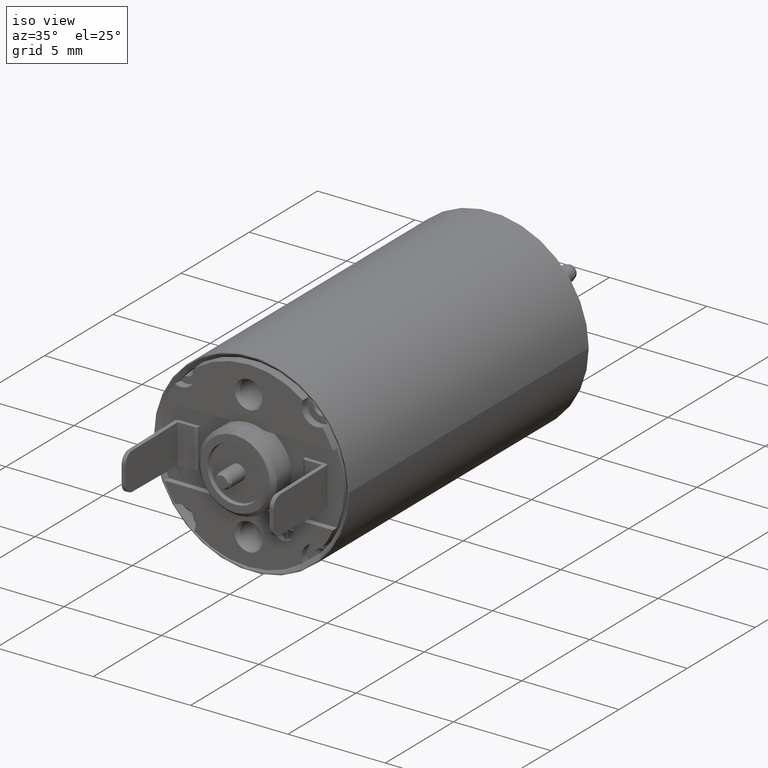
[diagram: clean part render]
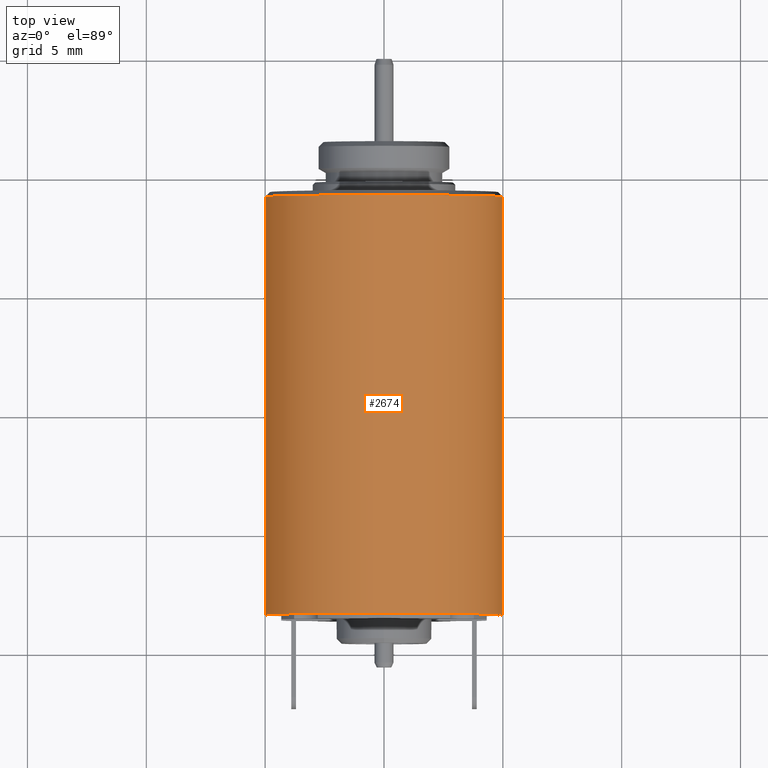
[diagram: tour spotlight — one face highlighted and labeled with its STEP entity id]
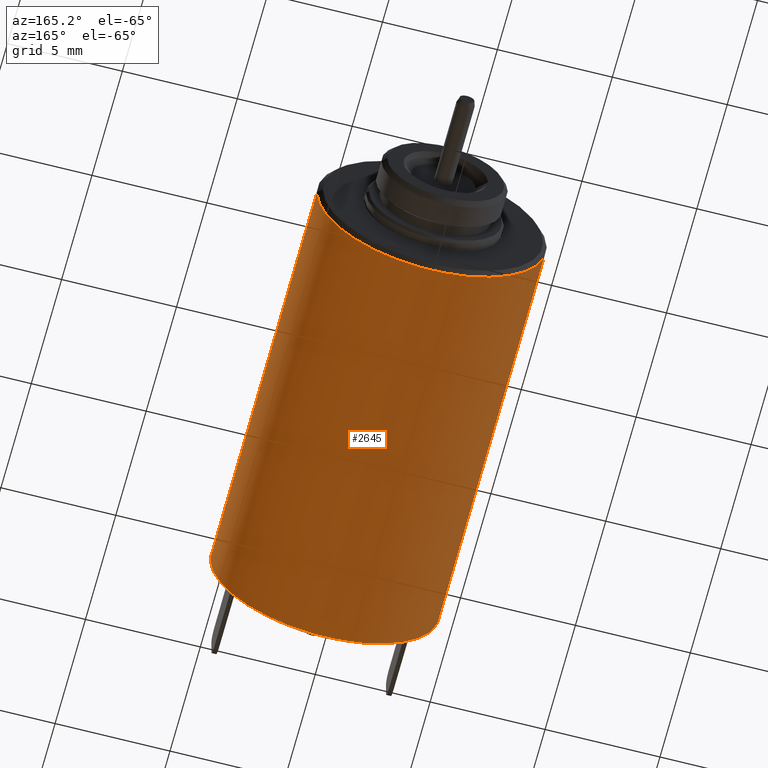
[diagram: tour spotlight — one face highlighted and labeled with its STEP entity id]
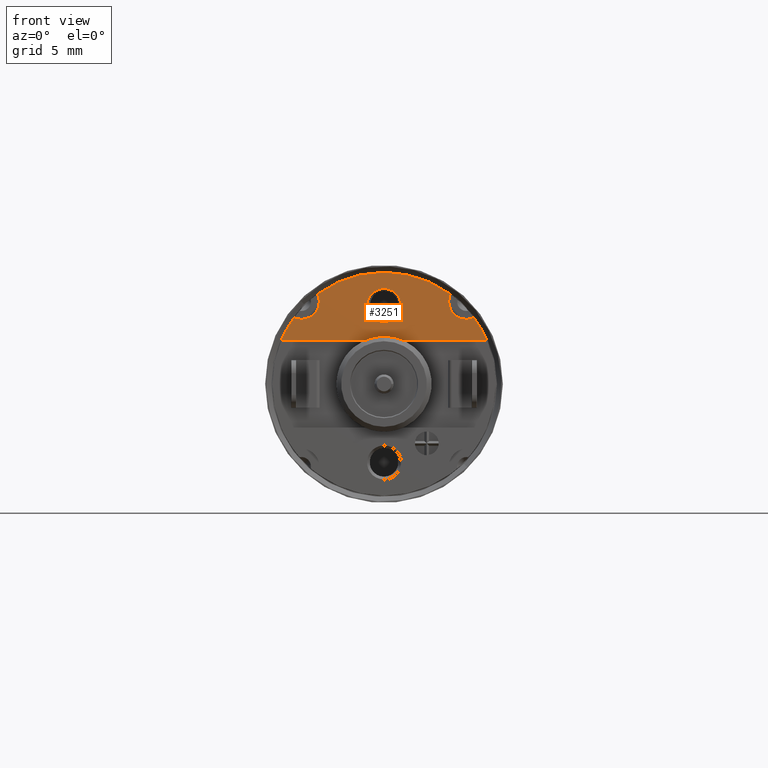
[diagram: tour spotlight — one face highlighted and labeled with its STEP entity id]
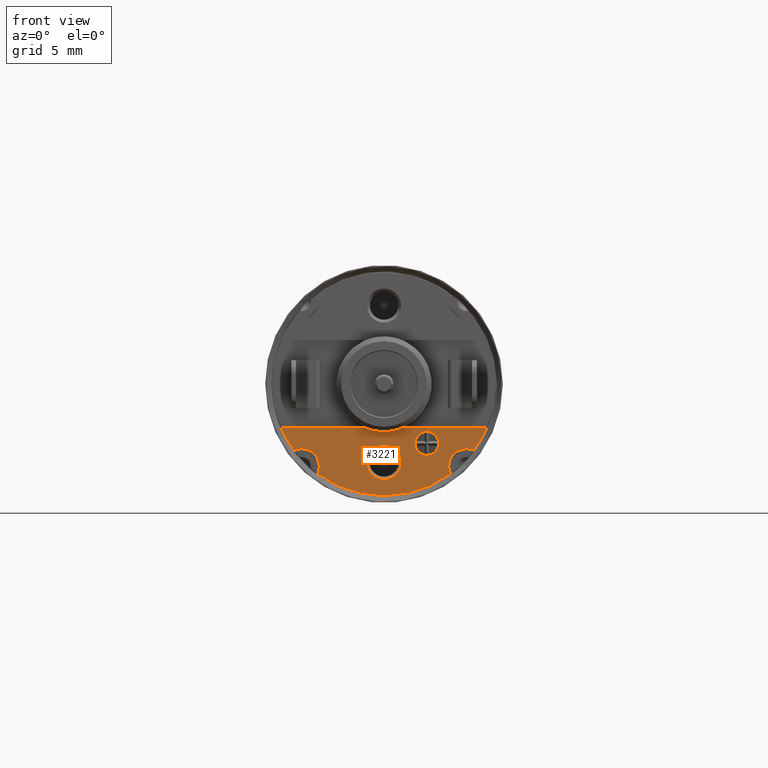
[diagram: tour spotlight — one face highlighted and labeled with its STEP entity id]
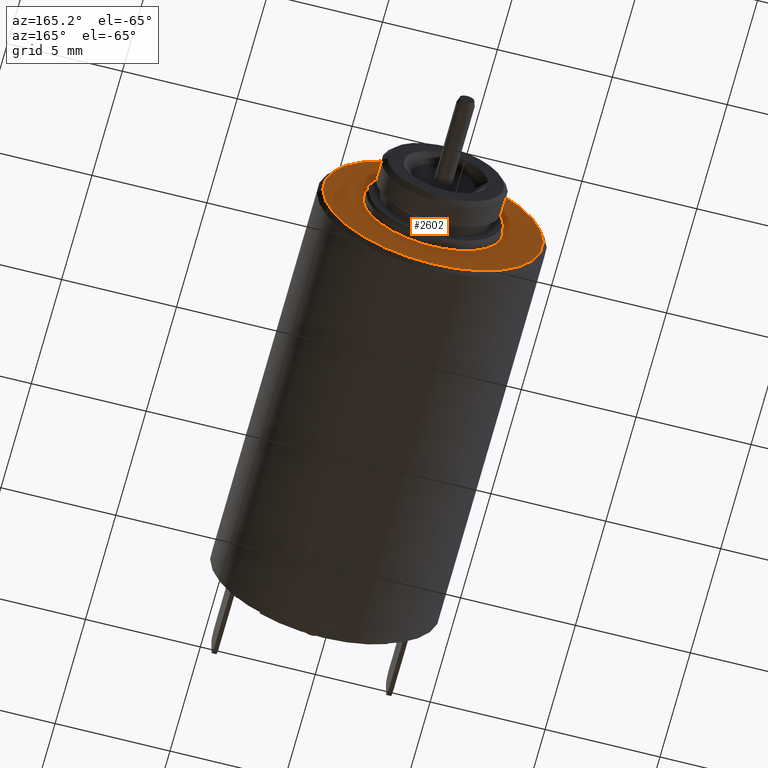
[diagram: tour spotlight — one face highlighted and labeled with its STEP entity id]
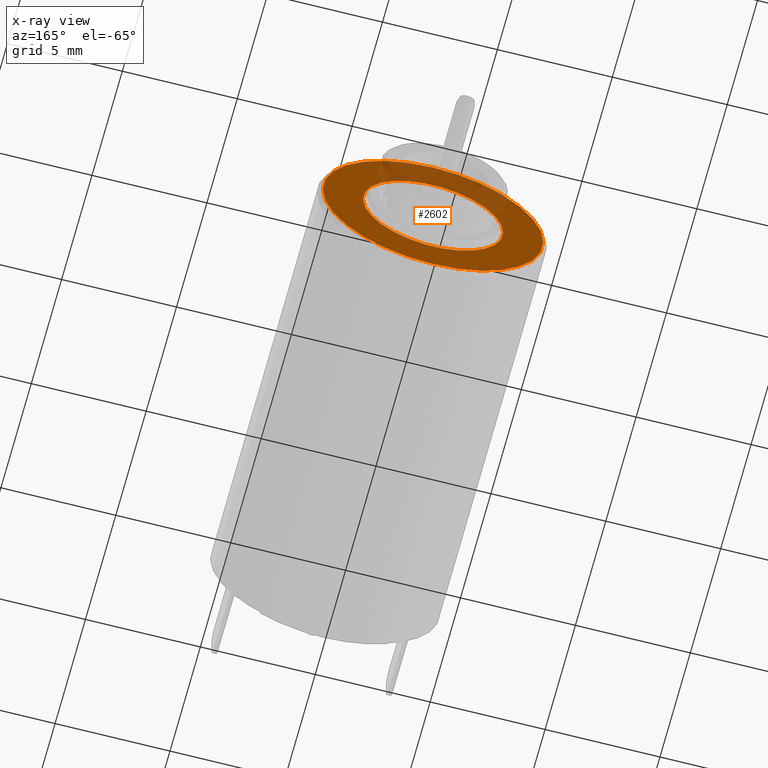
[diagram: x-ray of the same camera — body ghosted, this tour face saturated]
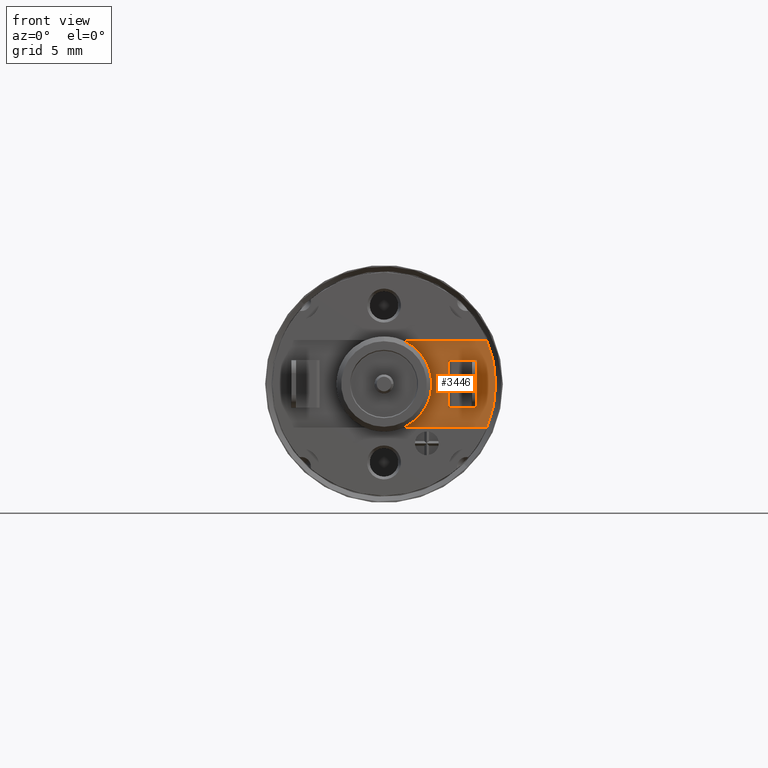
[diagram: tour spotlight — one face highlighted and labeled with its STEP entity id]
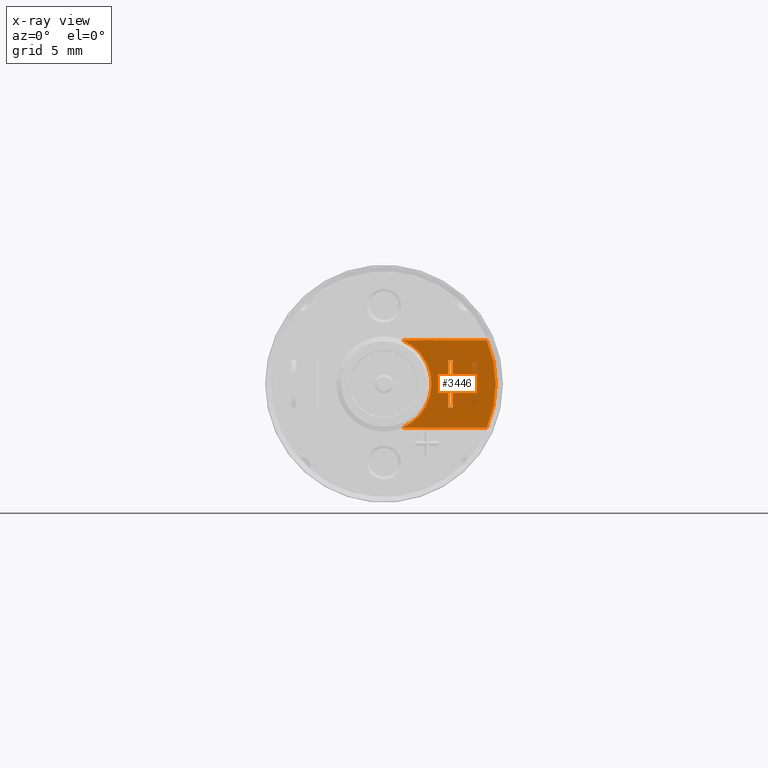
[diagram: x-ray of the same camera — body ghosted, this tour face saturated]
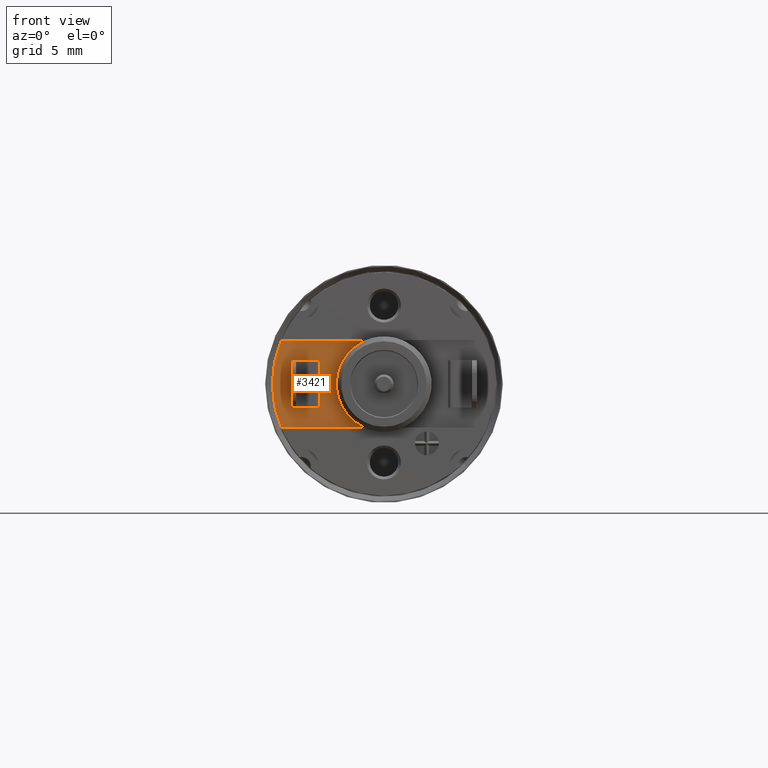
[diagram: tour spotlight — one face highlighted and labeled with its STEP entity id]
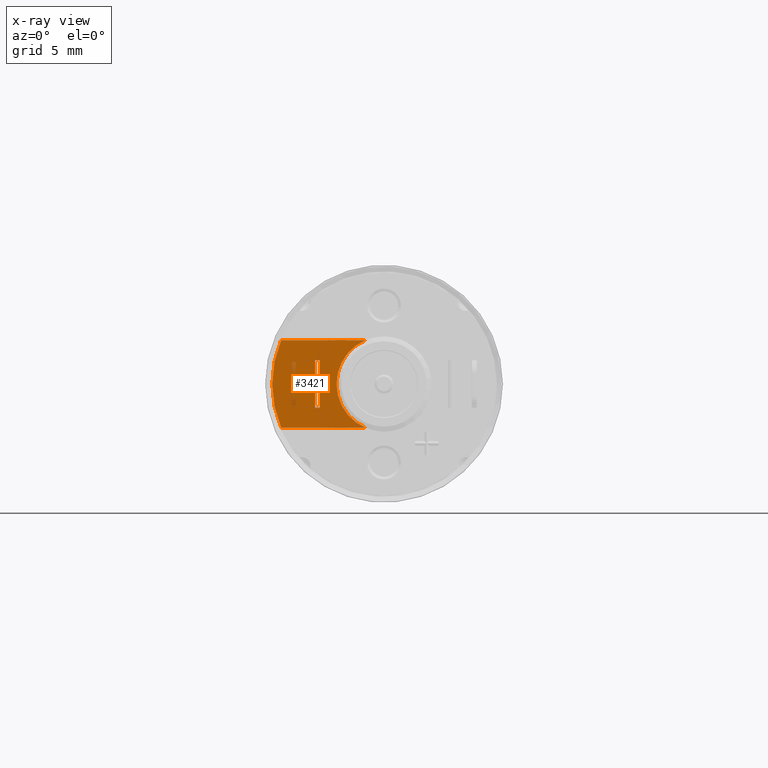
[diagram: x-ray of the same camera — body ghosted, this tour face saturated]
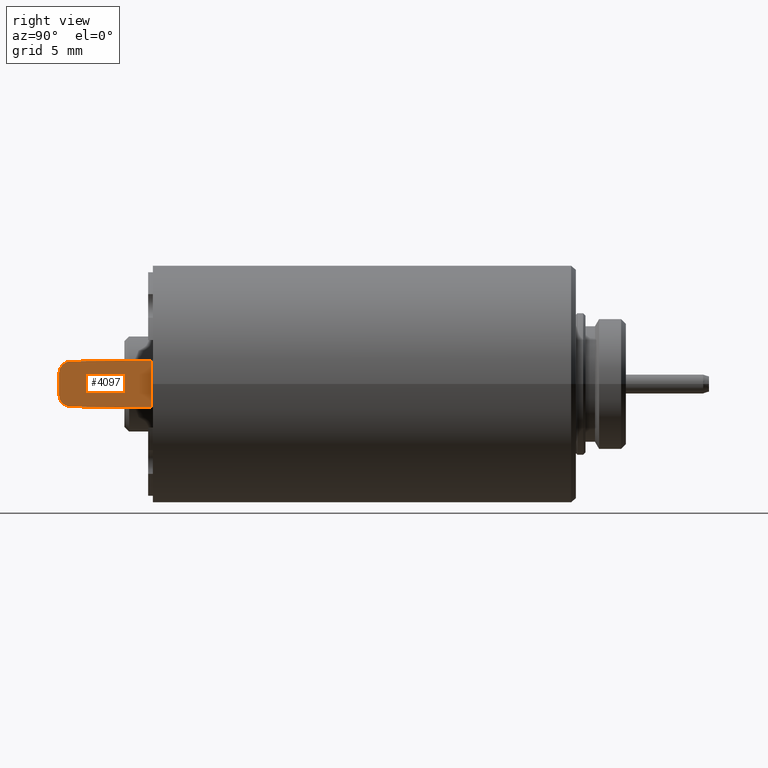
[diagram: tour spotlight — one face highlighted and labeled with its STEP entity id]
A machine part: a face-by-face anatomy tour. The part has 157 B-rep faces; the first image is the clean iso view, then the 8 largest visible faces are spotlighted one at a time (largest first), each with its STEP entity span.

Face 1 — top view, entity #2674. In plain terms, the highlighted cylindrical surface (partial cylindrical patch) has radius 5 mm, axis along (0, 1, 0).
Definition (entity closure, byte-faithful):
#246=DIRECTION('',(0.E0,-1.E0,0.E0));
#247=VECTOR('',#246,1.76E1);
#248=CARTESIAN_POINT('',(5.E0,-5.8E0,0.E0));
#249=LINE('',#248,#247);
#255=DIRECTION('',(0.E0,-1.E0,0.E0));
#256=VECTOR('',#255,1.76E1);
#257=CARTESIAN_POINT('',(-5.E0,-5.8E0,0.E0));
#258=LINE('',#257,#256);
#269=CARTESIAN_POINT('',(0.E0,-2.34E1,0.E0));
#270=DIRECTION('',(0.E0,-1.E0,0.E0));
#271=DIRECTION('',(1.E0,0.E0,0.E0));
#272=AXIS2_PLACEMENT_3D('',#269,#270,#271);
#274=CARTESIAN_POINT('',(0.E0,-5.8E0,0.E0));
#275=DIRECTION('',(0.E0,1.E0,0.E0));
#276=DIRECTION('',(-1.E0,0.E0,0.E0));
#277=AXIS2_PLACEMENT_3D('',#274,#275,#276);
#1796=CARTESIAN_POINT('',(-5.E0,-5.8E0,0.E0));
#1798=VERTEX_POINT('',#1796);
#1799=CARTESIAN_POINT('',(-5.E0,-2.34E1,0.E0));
#1800=VERTEX_POINT('',#1799);
#1820=CARTESIAN_POINT('',(5.E0,-5.8E0,0.E0));
#1822=VERTEX_POINT('',#1820);
#1823=CARTESIAN_POINT('',(5.E0,-2.34E1,0.E0));
#1824=VERTEX_POINT('',#1823);
#2663=CARTESIAN_POINT('',(0.E0,-2.688E1,0.E0));
#2664=DIRECTION('',(0.E0,1.E0,0.E0));
#2665=DIRECTION('',(1.E0,0.E0,0.E0));
#2666=AXIS2_PLACEMENT_3D('',#2663,#2664,#2665);
#2667=CYLINDRICAL_SURFACE('',#2666,5.E0);
#2668=ORIENTED_EDGE('',*,*,#2651,.T.);
#2669=ORIENTED_EDGE('',*,*,#2641,.F.);
#2670=ORIENTED_EDGE('',*,*,#2613,.T.);
#2671=ORIENTED_EDGE('',*,*,#2638,.T.);
#2672=EDGE_LOOP('',(#2668,#2669,#2670,#2671));
#2673=FACE_OUTER_BOUND('',#2672,.F.);
#2674=ADVANCED_FACE('',(#2673),#2667,.T.);
#273=CIRCLE('',#272,5.E0);
#278=CIRCLE('',#277,5.E0);
#2613=EDGE_CURVE('',#1798,#1822,#278,.T.);
#2638=EDGE_CURVE('',#1822,#1824,#249,.T.);
#2641=EDGE_CURVE('',#1798,#1800,#258,.T.);
#2651=EDGE_CURVE('',#1824,#1800,#273,.T.);

Face 2 — auxiliary view, entity #2645. In plain terms, the highlighted cylindrical surface (partial cylindrical patch) has radius 5 mm, axis along (0, 1, 0).
Definition (entity closure, byte-faithful):
#241=CARTESIAN_POINT('',(0.E0,-2.34E1,0.E0));
#242=DIRECTION('',(0.E0,-1.E0,0.E0));
#243=DIRECTION('',(-1.E0,0.E0,0.E0));
#244=AXIS2_PLACEMENT_3D('',#241,#242,#243);
#246=DIRECTION('',(0.E0,-1.E0,0.E0));
#247=VECTOR('',#246,1.76E1);
#248=CARTESIAN_POINT('',(5.E0,-5.8E0,0.E0));
#249=LINE('',#248,#247);
#250=CARTESIAN_POINT('',(0.E0,-5.8E0,0.E0));
#251=DIRECTION('',(0.E0,-1.E0,0.E0));
#252=DIRECTION('',(-1.E0,0.E0,0.E0));
#253=AXIS2_PLACEMENT_3D('',#250,#251,#252);
#255=DIRECTION('',(0.E0,-1.E0,0.E0));
#256=VECTOR('',#255,1.76E1);
#257=CARTESIAN_POINT('',(-5.E0,-5.8E0,0.E0));
#258=LINE('',#257,#256);
#1796=CARTESIAN_POINT('',(-5.E0,-5.8E0,0.E0));
#1798=VERTEX_POINT('',#1796);
#1799=CARTESIAN_POINT('',(-5.E0,-2.34E1,0.E0));
#1800=VERTEX_POINT('',#1799);
#1820=CARTESIAN_POINT('',(5.E0,-5.8E0,0.E0));
#1822=VERTEX_POINT('',#1820);
#1823=CARTESIAN_POINT('',(5.E0,-2.34E1,0.E0));
#1824=VERTEX_POINT('',#1823);
#2631=CARTESIAN_POINT('',(0.E0,-2.688E1,0.E0));
#2632=DIRECTION('',(0.E0,1.E0,0.E0));
#2633=DIRECTION('',(1.E0,0.E0,0.E0));
#2634=AXIS2_PLACEMENT_3D('',#2631,#2632,#2633);
#2635=CYLINDRICAL_SURFACE('',#2634,5.E0);
#2637=ORIENTED_EDGE('',*,*,#2636,.T.);
#2639=ORIENTED_EDGE('',*,*,#2638,.F.);
#2640=ORIENTED_EDGE('',*,*,#2624,.F.);
#2642=ORIENTED_EDGE('',*,*,#2641,.T.);
#2643=EDGE_LOOP('',(#2637,#2639,#2640,#2642));
#2644=FACE_OUTER_BOUND('',#2643,.F.);
#2645=ADVANCED_FACE('',(#2644),#2635,.T.);
#245=CIRCLE('',#244,5.E0);
#254=CIRCLE('',#253,5.E0);
#2624=EDGE_CURVE('',#1798,#1822,#254,.T.);
#2636=EDGE_CURVE('',#1800,#1824,#245,.T.);
#2638=EDGE_CURVE('',#1822,#1824,#249,.T.);
#2641=EDGE_CURVE('',#1798,#1800,#258,.T.);

Face 3 — front view, entity #3251. In plain terms, the highlighted planar face has unit normal (0, 1, 0).
Definition (entity closure, byte-faithful):
#395=CARTESIAN_POINT('',(0.E0,-2.36E1,0.E0));
#396=DIRECTION('',(0.E0,1.E0,0.E0));
#397=DIRECTION('',(-5.934816430566E-1,0.E0,8.048475255319E-1));
#398=AXIS2_PLACEMENT_3D('',#395,#396,#397);
#418=CARTESIAN_POINT('',(0.E0,-2.36E1,0.E0));
#419=DIRECTION('',(0.E0,1.E0,0.E0));
#420=DIRECTION('',(-9.201826338690E-1,0.E0,3.914893617021E-1));
#421=AXIS2_PLACEMENT_3D('',#418,#419,#420);
#631=CARTESIAN_POINT('',(0.E0,-2.36E1,0.E0));
#632=DIRECTION('',(0.E0,-1.E0,0.E0));
#633=DIRECTION('',(9.201826338690E-1,0.E0,3.914893617021E-1));
#634=AXIS2_PLACEMENT_3D('',#631,#632,#633);
#654=CARTESIAN_POINT('',(0.E0,-2.36E1,0.E0));
#655=DIRECTION('',(0.E0,-1.E0,0.E0));
#656=DIRECTION('',(5.934816430566E-1,0.E0,8.048475255319E-1));
#657=AXIS2_PLACEMENT_3D('',#654,#655,#656);
#742=CARTESIAN_POINT('',(0.E0,-2.36E1,3.3E0));
#743=DIRECTION('',(0.E0,1.E0,0.E0));
#744=DIRECTION('',(0.E0,0.E0,1.E0));
#745=AXIS2_PLACEMENT_3D('',#742,#743,#744);
#747=CARTESIAN_POINT('',(0.E0,-2.36E1,3.3E0));
#748=DIRECTION('',(0.E0,1.E0,0.E0));
#749=DIRECTION('',(0.E0,0.E0,-1.E0));
#750=AXIS2_PLACEMENT_3D('',#747,#748,#749);
#770=DIRECTION('',(-1.E0,0.E0,0.E0));
#771=VECTOR('',#770,3.541021661494E0);
#772=CARTESIAN_POINT('',(-7.838367176906E-1,-2.36E1,1.84E0));
#773=LINE('',#772,#771);
#774=DIRECTION('',(-1.E0,0.E0,0.E0));
#775=VECTOR('',#774,3.541021661494E0);
#776=CARTESIAN_POINT('',(4.324858379184E0,-2.36E1,1.84E0));
#777=LINE('',#776,#775);
#778=CARTESIAN_POINT('',(0.E0,-2.36E1,0.E0));
#779=DIRECTION('',(0.E0,-1.E0,0.E0));
#780=DIRECTION('',(3.919183588453E-1,0.E0,9.2E-1));
#781=AXIS2_PLACEMENT_3D('',#778,#779,#780);
#783=CARTESIAN_POINT('',(0.E0,-2.36E1,0.E0));
#784=DIRECTION('',(0.E0,1.E0,0.E0));
#785=DIRECTION('',(-3.919183588453E-1,0.E0,9.2E-1));
#786=AXIS2_PLACEMENT_3D('',#783,#784,#785);
#1462=CARTESIAN_POINT('',(-3.471894295626E0,-2.36E1,3.471894295626E0));
#1463=DIRECTION('',(0.E0,1.E0,0.E0));
#1464=DIRECTION('',(9.100407643468E-1,0.E0,4.145187658322E-1));
#1465=AXIS2_PLACEMENT_3D('',#1462,#1463,#1464);
#1492=CARTESIAN_POINT('',(3.471894295626E0,-2.36E1,3.471894295626E0));
#1493=DIRECTION('',(0.E0,1.E0,0.E0));
#1494=DIRECTION('',(4.145187658322E-1,0.E0,-9.100407643468E-1));
#1495=AXIS2_PLACEMENT_3D('',#1492,#1493,#1494);
#1871=CARTESIAN_POINT('',(0.E0,-2.36E1,2.E0));
#1872=VERTEX_POINT('',#1871);
#1907=CARTESIAN_POINT('',(0.E0,-2.36E1,4.7E0));
#1908=VERTEX_POINT('',#1907);
#1933=CARTESIAN_POINT('',(0.E0,-2.36E1,4.015470053838E0));
#1934=CARTESIAN_POINT('',(0.E0,-2.36E1,2.584529946162E0));
#1935=VERTEX_POINT('',#1933);
#1936=VERTEX_POINT('',#1934);
#1941=CARTESIAN_POINT('',(-2.789363722366E0,-2.36E1,3.78278337E0));
#1943=VERTEX_POINT('',#1941);
#1951=CARTESIAN_POINT('',(-3.78278337E0,-2.36E1,2.789363722366E0));
#1952=VERTEX_POINT('',#1951);
#1953=CARTESIAN_POINT('',(3.78278337E0,-2.36E1,2.789363722366E0));
#1955=VERTEX_POINT('',#1953);
#1963=CARTESIAN_POINT('',(2.789363722366E0,-2.36E1,3.78278337E0));
#1964=VERTEX_POINT('',#1963);
#1997=CARTESIAN_POINT('',(-7.838367176906E-1,-2.36E1,1.84E0));
#1998=CARTESIAN_POINT('',(-4.324858379184E0,-2.36E1,1.84E0));
#1999=VERTEX_POINT('',#1997);
#2000=VERTEX_POINT('',#1998);
#2011=CARTESIAN_POINT('',(7.838367176906E-1,-2.36E1,1.84E0));
#2012=VERTEX_POINT('',#2011);
#2015=CARTESIAN_POINT('',(4.324858379184E0,-2.36E1,1.84E0));
#2016=VERTEX_POINT('',#2015);
#3222=CARTESIAN_POINT('',(0.E0,-2.36E1,0.E0));
#3223=DIRECTION('',(0.E0,1.E0,0.E0));
#3224=DIRECTION('',(0.E0,0.E0,-1.E0));
#3225=AXIS2_PLACEMENT_3D('',#3222,#3223,#3224);
#3226=PLANE('',#3225);
#3228=ORIENTED_EDGE('',*,*,#3227,.T.);
#3229=ORIENTED_EDGE('',*,*,#2912,.T.);
#3231=ORIENTED_EDGE('',*,*,#3230,.F.);
#3232=ORIENTED_EDGE('',*,*,#2900,.T.);
#3233=ORIENTED_EDGE('',*,*,#3080,.F.);
#3235=ORIENTED_EDGE('',*,*,#3234,.F.);
#3236=ORIENTED_EDGE('',*,*,#3068,.F.);
#3238=ORIENTED_EDGE('',*,*,#3237,.T.);
#3240=ORIENTED_EDGE('',*,*,#3239,.T.);
#3242=ORIENTED_EDGE('',*,*,#3241,.F.);
#3243=EDGE_LOOP('',(#3228,#3229,#3231,#3232,#3233,#3235,#3236,#3238,#3240,
#3242));
#3244=FACE_OUTER_BOUND('',#3243,.F.);
#3246=ORIENTED_EDGE('',*,*,#3245,.F.);
#3248=ORIENTED_EDGE('',*,*,#3247,.F.);
#3249=EDGE_LOOP('',(#3246,#3248));
#3250=FACE_BOUND('',#3249,.F.);
#3251=ADVANCED_FACE('',(#3244,#3250),#3226,.F.);
#399=CIRCLE('',#398,4.7E0);
#422=CIRCLE('',#421,4.7E0);
#635=CIRCLE('',#634,4.7E0);
#658=CIRCLE('',#657,4.7E0);
#746=CIRCLE('',#745,7.154700538379E-1);
#751=CIRCLE('',#750,7.154700538379E-1);
#782=CIRCLE('',#781,2.E0);
#787=CIRCLE('',#786,2.E0);
#1466=CIRCLE('',#1465,7.5E-1);
#1496=CIRCLE('',#1495,7.5E-1);
#2900=EDGE_CURVE('',#1943,#1908,#399,.T.);
#2912=EDGE_CURVE('',#2000,#1952,#422,.T.);
#3068=EDGE_CURVE('',#2016,#1955,#635,.T.);
#3080=EDGE_CURVE('',#1964,#1908,#658,.T.);
#3227=EDGE_CURVE('',#1999,#2000,#773,.T.);
#3230=EDGE_CURVE('',#1943,#1952,#1466,.T.);
#3234=EDGE_CURVE('',#1955,#1964,#1496,.T.);
#3237=EDGE_CURVE('',#2016,#2012,#777,.T.);
#3239=EDGE_CURVE('',#2012,#1872,#782,.T.);
#3241=EDGE_CURVE('',#1999,#1872,#787,.T.);
#3245=EDGE_CURVE('',#1935,#1936,#746,.T.);
#3247=EDGE_CURVE('',#1936,#1935,#751,.T.);

Face 4 — front view, entity #3221. In plain terms, the highlighted planar face has unit normal (0, 1, 0).
Definition (entity closure, byte-faithful):
#436=CARTESIAN_POINT('',(0.E0,-2.36E1,0.E0));
#437=DIRECTION('',(0.E0,1.E0,0.E0));
#438=DIRECTION('',(-8.048475255319E-1,0.E0,-5.934816430566E-1));
#439=AXIS2_PLACEMENT_3D('',#436,#437,#438);
#459=CARTESIAN_POINT('',(0.E0,-2.36E1,0.E0));
#460=DIRECTION('',(0.E0,1.E0,0.E0));
#461=DIRECTION('',(0.E0,0.E0,-1.E0));
#462=AXIS2_PLACEMENT_3D('',#459,#460,#461);
#590=CARTESIAN_POINT('',(0.E0,-2.36E1,0.E0));
#591=DIRECTION('',(0.E0,-1.E0,0.E0));
#592=DIRECTION('',(0.E0,0.E0,-1.E0));
#593=AXIS2_PLACEMENT_3D('',#590,#591,#592);
#613=CARTESIAN_POINT('',(0.E0,-2.36E1,0.E0));
#614=DIRECTION('',(0.E0,-1.E0,0.E0));
#615=DIRECTION('',(8.048475255319E-1,0.E0,-5.934816430566E-1));
#616=AXIS2_PLACEMENT_3D('',#613,#614,#615);
#732=CARTESIAN_POINT('',(0.E0,-2.36E1,-3.3E0));
#733=DIRECTION('',(0.E0,1.E0,0.E0));
#734=DIRECTION('',(0.E0,0.E0,1.E0));
#735=AXIS2_PLACEMENT_3D('',#732,#733,#734);
#737=CARTESIAN_POINT('',(0.E0,-2.36E1,-3.3E0));
#738=DIRECTION('',(0.E0,1.E0,0.E0));
#739=DIRECTION('',(0.E0,0.E0,-1.E0));
#740=AXIS2_PLACEMENT_3D('',#737,#738,#739);
#752=DIRECTION('',(1.E0,0.E0,0.E0));
#753=VECTOR('',#752,3.541021661494E0);
#754=CARTESIAN_POINT('',(-4.324858379184E0,-2.36E1,-1.84E0));
#755=LINE('',#754,#753);
#756=CARTESIAN_POINT('',(0.E0,-2.36E1,0.E0));
#757=DIRECTION('',(0.E0,1.E0,0.E0));
#758=DIRECTION('',(0.E0,0.E0,-1.E0));
#759=AXIS2_PLACEMENT_3D('',#756,#757,#758);
#761=CARTESIAN_POINT('',(0.E0,-2.36E1,0.E0));
#762=DIRECTION('',(0.E0,-1.E0,0.E0));
#763=DIRECTION('',(0.E0,0.E0,-1.E0));
#764=AXIS2_PLACEMENT_3D('',#761,#762,#763);
#766=DIRECTION('',(1.E0,0.E0,0.E0));
#767=VECTOR('',#766,3.541021661494E0);
#768=CARTESIAN_POINT('',(7.838367176906E-1,-2.36E1,-1.84E0));
#769=LINE('',#768,#767);
#788=CARTESIAN_POINT('',(1.8E0,-2.36E1,-2.5E0));
#789=DIRECTION('',(0.E0,-1.E0,0.E0));
#790=DIRECTION('',(0.E0,0.E0,1.E0));
#791=AXIS2_PLACEMENT_3D('',#788,#789,#790);
#793=CARTESIAN_POINT('',(1.8E0,-2.36E1,-2.5E0));
#794=DIRECTION('',(0.E0,-1.E0,0.E0));
#795=DIRECTION('',(0.E0,0.E0,-1.E0));
#796=AXIS2_PLACEMENT_3D('',#793,#794,#795);
#1402=CARTESIAN_POINT('',(3.471894295626E0,-2.36E1,-3.471894295626E0));
#1403=DIRECTION('',(0.E0,1.E0,0.E0));
#1404=DIRECTION('',(-9.100407643468E-1,0.E0,-4.145187658322E-1));
#1405=AXIS2_PLACEMENT_3D('',#1402,#1403,#1404);
#1432=CARTESIAN_POINT('',(-3.471894295626E0,-2.36E1,-3.471894295626E0));
#1433=DIRECTION('',(0.E0,1.E0,0.E0));
#1434=DIRECTION('',(-4.145187658322E-1,0.E0,9.100407643468E-1));
#1435=AXIS2_PLACEMENT_3D('',#1432,#1433,#1434);
#1861=CARTESIAN_POINT('',(0.E0,-2.36E1,-2.E0));
#1862=VERTEX_POINT('',#1861);
#1883=CARTESIAN_POINT('',(0.E0,-2.36E1,-4.7E0));
#1884=VERTEX_POINT('',#1883);
#1925=CARTESIAN_POINT('',(0.E0,-2.36E1,-2.584529946162E0));
#1926=CARTESIAN_POINT('',(0.E0,-2.36E1,-4.015470053838E0));
#1927=VERTEX_POINT('',#1925);
#1928=VERTEX_POINT('',#1926);
#1965=CARTESIAN_POINT('',(2.789363722366E0,-2.36E1,-3.78278337E0));
#1967=VERTEX_POINT('',#1965);
#1975=CARTESIAN_POINT('',(3.78278337E0,-2.36E1,-2.789363722366E0));
#1976=VERTEX_POINT('',#1975);
#1977=CARTESIAN_POINT('',(-3.78278337E0,-2.36E1,-2.789363722366E0));
#1979=VERTEX_POINT('',#1977);
#1987=CARTESIAN_POINT('',(-2.789363722366E0,-2.36E1,-3.78278337E0));
#1988=VERTEX_POINT('',#1987);
#1993=CARTESIAN_POINT('',(-4.324858379184E0,-2.36E1,-1.84E0));
#1994=CARTESIAN_POINT('',(-7.838367176906E-1,-2.36E1,-1.84E0));
#1995=VERTEX_POINT('',#1993);
#1996=VERTEX_POINT('',#1994);
#2009=CARTESIAN_POINT('',(7.838367176906E-1,-2.36E1,-1.84E0));
#2010=VERTEX_POINT('',#2009);
#2013=CARTESIAN_POINT('',(4.324858379184E0,-2.36E1,-1.84E0));
#2014=VERTEX_POINT('',#2013);
#2137=CARTESIAN_POINT('',(1.8E0,-2.36E1,-2.E0));
#2138=CARTESIAN_POINT('',(1.8E0,-2.36E1,-3.E0));
#2139=VERTEX_POINT('',#2137);
#2140=VERTEX_POINT('',#2138);
#3186=CARTESIAN_POINT('',(0.E0,-2.36E1,0.E0));
#3187=DIRECTION('',(0.E0,1.E0,0.E0));
#3188=DIRECTION('',(0.E0,0.E0,-1.E0));
#3189=AXIS2_PLACEMENT_3D('',#3186,#3187,#3188);
#3190=PLANE('',#3189);
#3192=ORIENTED_EDGE('',*,*,#3191,.T.);
#3194=ORIENTED_EDGE('',*,*,#3193,.F.);
#3196=ORIENTED_EDGE('',*,*,#3195,.T.);
#3198=ORIENTED_EDGE('',*,*,#3197,.T.);
#3199=ORIENTED_EDGE('',*,*,#3060,.F.);
#3201=ORIENTED_EDGE('',*,*,#3200,.F.);
#3202=ORIENTED_EDGE('',*,*,#3048,.F.);
#3203=ORIENTED_EDGE('',*,*,#2932,.T.);
#3205=ORIENTED_EDGE('',*,*,#3204,.F.);
#3206=ORIENTED_EDGE('',*,*,#2920,.T.);
#3207=EDGE_LOOP('',(#3192,#3194,#3196,#3198,#3199,#3201,#3202,#3203,#3205,
#3206));
#3208=FACE_OUTER_BOUND('',#3207,.F.);
#3210=ORIENTED_EDGE('',*,*,#3209,.F.);
#3212=ORIENTED_EDGE('',*,*,#3211,.F.);
#3213=EDGE_LOOP('',(#3210,#3212));
#3214=FACE_BOUND('',#3213,.F.);
#3216=ORIENTED_EDGE('',*,*,#3215,.T.);
#3218=ORIENTED_EDGE('',*,*,#3217,.T.);
#3219=EDGE_LOOP('',(#3216,#3218));
#3220=FACE_BOUND('',#3219,.F.);
#3221=ADVANCED_FACE('',(#3208,#3214,#3220),#3190,.F.);
#440=CIRCLE('',#439,4.7E0);
#463=CIRCLE('',#462,4.7E0);
#594=CIRCLE('',#593,4.7E0);
#617=CIRCLE('',#616,4.7E0);
#736=CIRCLE('',#735,7.154700538379E-1);
#741=CIRCLE('',#740,7.154700538379E-1);
#760=CIRCLE('',#759,2.E0);
#765=CIRCLE('',#764,2.E0);
#792=CIRCLE('',#791,5.E-1);
#797=CIRCLE('',#796,5.E-1);
#1406=CIRCLE('',#1405,7.5E-1);
#1436=CIRCLE('',#1435,7.5E-1);
#2920=EDGE_CURVE('',#1979,#1995,#440,.T.);
#2932=EDGE_CURVE('',#1884,#1988,#463,.T.);
#3048=EDGE_CURVE('',#1884,#1967,#594,.T.);
#3060=EDGE_CURVE('',#1976,#2014,#617,.T.);
#3191=EDGE_CURVE('',#1995,#1996,#755,.T.);
#3193=EDGE_CURVE('',#1862,#1996,#760,.T.);
#3195=EDGE_CURVE('',#1862,#2010,#765,.T.);
#3197=EDGE_CURVE('',#2010,#2014,#769,.T.);
#3200=EDGE_CURVE('',#1967,#1976,#1406,.T.);
#3204=EDGE_CURVE('',#1979,#1988,#1436,.T.);
#3209=EDGE_CURVE('',#1927,#1928,#736,.T.);
#3211=EDGE_CURVE('',#1928,#1927,#741,.T.);
#3215=EDGE_CURVE('',#2139,#2140,#792,.T.);
#3217=EDGE_CURVE('',#2140,#2139,#797,.T.);

Face 5 — auxiliary view, entity #2602. An x-ray twin of the same camera follows (body ghosted, this face saturated) — the face is partly hidden behind the body. In plain terms, the highlighted planar face has unit normal (0, 1, 0).
Definition (entity closure, byte-faithful):
#213=CARTESIAN_POINT('',(0.E0,-5.6E0,0.E0));
#214=DIRECTION('',(0.E0,-1.E0,0.E0));
#215=DIRECTION('',(-1.E0,0.E0,0.E0));
#216=AXIS2_PLACEMENT_3D('',#213,#214,#215);
#218=CARTESIAN_POINT('',(0.E0,-5.6E0,0.E0));
#219=DIRECTION('',(0.E0,1.E0,0.E0));
#220=DIRECTION('',(-1.E0,0.E0,0.E0));
#221=AXIS2_PLACEMENT_3D('',#218,#219,#220);
#223=CARTESIAN_POINT('',(0.E0,-5.6E0,0.E0));
#224=DIRECTION('',(0.E0,1.E0,0.E0));
#225=DIRECTION('',(-1.E0,0.E0,0.E0));
#226=AXIS2_PLACEMENT_3D('',#223,#224,#225);
#236=CARTESIAN_POINT('',(0.E0,-5.6E0,0.E0));
#237=DIRECTION('',(0.E0,-1.E0,0.E0));
#238=DIRECTION('',(-1.E0,0.E0,0.E0));
#239=AXIS2_PLACEMENT_3D('',#236,#237,#238);
#1793=CARTESIAN_POINT('',(-3.05E0,-5.6E0,0.E0));
#1794=VERTEX_POINT('',#1793);
#1795=CARTESIAN_POINT('',(-4.8E0,-5.6E0,0.E0));
#1797=VERTEX_POINT('',#1795);
#1817=CARTESIAN_POINT('',(3.05E0,-5.6E0,0.E0));
#1818=VERTEX_POINT('',#1817);
#1819=CARTESIAN_POINT('',(4.8E0,-5.6E0,0.E0));
#1821=VERTEX_POINT('',#1819);
#2587=CARTESIAN_POINT('',(0.E0,-5.6E0,0.E0));
#2588=DIRECTION('',(0.E0,1.E0,0.E0));
#2589=DIRECTION('',(1.E0,0.E0,0.E0));
#2590=AXIS2_PLACEMENT_3D('',#2587,#2588,#2589);
#2591=PLANE('',#2590);
#2593=ORIENTED_EDGE('',*,*,#2592,.F.);
#2595=ORIENTED_EDGE('',*,*,#2594,.T.);
#2596=EDGE_LOOP('',(#2593,#2595));
#2597=FACE_OUTER_BOUND('',#2596,.F.);
#2598=ORIENTED_EDGE('',*,*,#2580,.F.);
#2599=ORIENTED_EDGE('',*,*,#2569,.T.);
#2600=EDGE_LOOP('',(#2598,#2599));
#2601=FACE_BOUND('',#2600,.F.);
#2602=ADVANCED_FACE('',(#2597,#2601),#2591,.T.);
#217=CIRCLE('',#216,3.05E0);
#222=CIRCLE('',#221,3.05E0);
#227=CIRCLE('',#226,4.8E0);
#240=CIRCLE('',#239,4.8E0);
#2569=EDGE_CURVE('',#1794,#1818,#222,.T.);
#2580=EDGE_CURVE('',#1794,#1818,#217,.T.);
#2592=EDGE_CURVE('',#1797,#1821,#227,.T.);
#2594=EDGE_CURVE('',#1797,#1821,#240,.T.);

Face 6 — front view, entity #3446. An x-ray twin of the same camera follows (body ghosted, this face saturated) — the face is partly hidden behind the body. In plain terms, the highlighted planar face has unit normal (0, -1, 0).
Definition (entity closure, byte-faithful):
#622=CARTESIAN_POINT('',(0.E0,-2.33E1,0.E0));
#623=DIRECTION('',(0.E0,1.E0,0.E0));
#624=DIRECTION('',(9.201826338690E-1,0.E0,3.914893617021E-1));
#625=AXIS2_PLACEMENT_3D('',#622,#623,#624);
#883=DIRECTION('',(1.E0,0.E0,0.E0));
#884=VECTOR('',#883,3.541021661494E0);
#885=CARTESIAN_POINT('',(7.838367176906E-1,-2.33E1,-1.84E0));
#886=LINE('',#885,#884);
#887=CARTESIAN_POINT('',(0.E0,-2.33E1,0.E0));
#888=DIRECTION('',(0.E0,1.E0,0.E0));
#889=DIRECTION('',(3.919183588453E-1,0.E0,9.2E-1));
#890=AXIS2_PLACEMENT_3D('',#887,#888,#889);
#892=DIRECTION('',(-1.E0,0.E0,0.E0));
#893=VECTOR('',#892,3.541021661494E0);
#894=CARTESIAN_POINT('',(4.324858379184E0,-2.33E1,1.84E0));
#895=LINE('',#894,#893);
#896=DIRECTION('',(1.E0,0.E0,0.E0));
#897=VECTOR('',#896,2.E-1);
#898=CARTESIAN_POINT('',(2.7E0,-2.33E1,-1.E0));
#899=LINE('',#898,#897);
#900=DIRECTION('',(0.E0,0.E0,1.E0));
#901=VECTOR('',#900,2.E0);
#902=CARTESIAN_POINT('',(2.9E0,-2.33E1,-1.E0));
#903=LINE('',#902,#901);
#904=DIRECTION('',(-1.E0,0.E0,0.E0));
#905=VECTOR('',#904,2.E-1);
#906=CARTESIAN_POINT('',(2.9E0,-2.33E1,1.E0));
#907=LINE('',#906,#905);
#908=DIRECTION('',(0.E0,0.E0,1.E0));
#909=VECTOR('',#908,2.E0);
#910=CARTESIAN_POINT('',(2.7E0,-2.33E1,-1.E0));
#911=LINE('',#910,#909);
#2005=CARTESIAN_POINT('',(4.324858379184E0,-2.33E1,1.84E0));
#2006=CARTESIAN_POINT('',(4.324858379184E0,-2.33E1,-1.84E0));
#2007=VERTEX_POINT('',#2005);
#2008=VERTEX_POINT('',#2006);
#2017=CARTESIAN_POINT('',(7.838367176906E-1,-2.33E1,1.84E0));
#2018=CARTESIAN_POINT('',(7.838367176906E-1,-2.33E1,-1.84E0));
#2019=VERTEX_POINT('',#2017);
#2020=VERTEX_POINT('',#2018);
#2045=CARTESIAN_POINT('',(2.7E0,-2.33E1,-1.E0));
#2046=CARTESIAN_POINT('',(2.9E0,-2.33E1,-1.E0));
#2047=VERTEX_POINT('',#2045);
#2048=VERTEX_POINT('',#2046);
#2049=CARTESIAN_POINT('',(2.9E0,-2.33E1,1.E0));
#2050=CARTESIAN_POINT('',(2.7E0,-2.33E1,1.E0));
#2051=VERTEX_POINT('',#2049);
#2052=VERTEX_POINT('',#2050);
#3422=CARTESIAN_POINT('',(0.E0,-2.33E1,0.E0));
#3423=DIRECTION('',(0.E0,-1.E0,0.E0));
#3424=DIRECTION('',(0.E0,0.E0,1.E0));
#3425=AXIS2_PLACEMENT_3D('',#3422,#3423,#3424);
#3426=PLANE('',#3425);
#3427=ORIENTED_EDGE('',*,*,#3064,.T.);
#3429=ORIENTED_EDGE('',*,*,#3428,.F.);
#3431=ORIENTED_EDGE('',*,*,#3430,.F.);
#3433=ORIENTED_EDGE('',*,*,#3432,.F.);
#3434=EDGE_LOOP('',(#3427,#3429,#3431,#3433));
#3435=FACE_OUTER_BOUND('',#3434,.F.);
#3437=ORIENTED_EDGE('',*,*,#3436,.T.);
#3439=ORIENTED_EDGE('',*,*,#3438,.T.);
#3441=ORIENTED_EDGE('',*,*,#3440,.T.);
#3443=ORIENTED_EDGE('',*,*,#3442,.F.);
#3444=EDGE_LOOP('',(#3437,#3439,#3441,#3443));
#3445=FACE_BOUND('',#3444,.F.);
#3446=ADVANCED_FACE('',(#3435,#3445),#3426,.T.);
#626=CIRCLE('',#625,4.7E0);
#891=CIRCLE('',#890,2.E0);
#3064=EDGE_CURVE('',#2007,#2008,#626,.T.);
#3428=EDGE_CURVE('',#2020,#2008,#886,.T.);
#3430=EDGE_CURVE('',#2019,#2020,#891,.T.);
#3432=EDGE_CURVE('',#2007,#2019,#895,.T.);
#3436=EDGE_CURVE('',#2047,#2048,#899,.T.);
#3438=EDGE_CURVE('',#2048,#2051,#903,.T.);
#3440=EDGE_CURVE('',#2051,#2052,#907,.T.);
#3442=EDGE_CURVE('',#2047,#2052,#911,.T.);

Face 7 — front view, entity #3421. An x-ray twin of the same camera follows (body ghosted, this face saturated) — the face is partly hidden behind the body. In plain terms, the highlighted planar face has unit normal (0, -1, 0).
Definition (entity closure, byte-faithful):
#427=CARTESIAN_POINT('',(0.E0,-2.33E1,0.E0));
#428=DIRECTION('',(0.E0,1.E0,0.E0));
#429=DIRECTION('',(-9.201826338690E-1,0.E0,-3.914893617021E-1));
#430=AXIS2_PLACEMENT_3D('',#427,#428,#429);
#870=DIRECTION('',(-1.E0,0.E0,0.E0));
#871=VECTOR('',#870,3.541021661494E0);
#872=CARTESIAN_POINT('',(-7.838367176906E-1,-2.33E1,1.84E0));
#873=LINE('',#872,#871);
#874=CARTESIAN_POINT('',(0.E0,-2.33E1,0.E0));
#875=DIRECTION('',(0.E0,1.E0,0.E0));
#876=DIRECTION('',(-3.919183588453E-1,0.E0,-9.2E-1));
#877=AXIS2_PLACEMENT_3D('',#874,#875,#876);
#879=DIRECTION('',(1.E0,0.E0,0.E0));
#880=VECTOR('',#879,3.541021661494E0);
#881=CARTESIAN_POINT('',(-4.324858379184E0,-2.33E1,-1.84E0));
#882=LINE('',#881,#880);
#912=DIRECTION('',(0.E0,0.E0,1.E0));
#913=VECTOR('',#912,2.E0);
#914=CARTESIAN_POINT('',(-2.7E0,-2.33E1,-1.E0));
#915=LINE('',#914,#913);
#916=DIRECTION('',(-1.E0,0.E0,0.E0));
#917=VECTOR('',#916,2.E-1);
#918=CARTESIAN_POINT('',(-2.7E0,-2.33E1,1.E0));
#919=LINE('',#918,#917);
#920=DIRECTION('',(0.E0,0.E0,1.E0));
#921=VECTOR('',#920,2.E0);
#922=CARTESIAN_POINT('',(-2.9E0,-2.33E1,-1.E0));
#923=LINE('',#922,#921);
#924=DIRECTION('',(1.E0,0.E0,0.E0));
#925=VECTOR('',#924,2.E-1);
#926=CARTESIAN_POINT('',(-2.9E0,-2.33E1,-1.E0));
#927=LINE('',#926,#925);
#1989=CARTESIAN_POINT('',(-7.838367176906E-1,-2.33E1,-1.84E0));
#1990=CARTESIAN_POINT('',(-7.838367176906E-1,-2.33E1,1.84E0));
#1991=VERTEX_POINT('',#1989);
#1992=VERTEX_POINT('',#1990);
#2001=CARTESIAN_POINT('',(-4.324858379184E0,-2.33E1,-1.84E0));
#2002=CARTESIAN_POINT('',(-4.324858379184E0,-2.33E1,1.84E0));
#2003=VERTEX_POINT('',#2001);
#2004=VERTEX_POINT('',#2002);
#2053=CARTESIAN_POINT('',(-2.7E0,-2.33E1,-1.E0));
#2054=CARTESIAN_POINT('',(-2.7E0,-2.33E1,1.E0));
#2055=VERTEX_POINT('',#2053);
#2056=VERTEX_POINT('',#2054);
#2081=CARTESIAN_POINT('',(-2.9E0,-2.33E1,-1.E0));
#2082=VERTEX_POINT('',#2081);
#2083=CARTESIAN_POINT('',(-2.9E0,-2.33E1,1.E0));
#2084=VERTEX_POINT('',#2083);
#3398=CARTESIAN_POINT('',(0.E0,-2.33E1,0.E0));
#3399=DIRECTION('',(0.E0,-1.E0,0.E0));
#3400=DIRECTION('',(0.E0,0.E0,1.E0));
#3401=AXIS2_PLACEMENT_3D('',#3398,#3399,#3400);
#3402=PLANE('',#3401);
#3403=ORIENTED_EDGE('',*,*,#2916,.T.);
#3405=ORIENTED_EDGE('',*,*,#3404,.F.);
#3407=ORIENTED_EDGE('',*,*,#3406,.F.);
#3408=ORIENTED_EDGE('',*,*,#3391,.F.);
#3409=EDGE_LOOP('',(#3403,#3405,#3407,#3408));
#3410=FACE_OUTER_BOUND('',#3409,.F.);
#3412=ORIENTED_EDGE('',*,*,#3411,.T.);
#3414=ORIENTED_EDGE('',*,*,#3413,.T.);
#3416=ORIENTED_EDGE('',*,*,#3415,.F.);
#3418=ORIENTED_EDGE('',*,*,#3417,.T.);
#3419=EDGE_LOOP('',(#3412,#3414,#3416,#3418));
#3420=FACE_BOUND('',#3419,.F.);
#3421=ADVANCED_FACE('',(#3410,#3420),#3402,.T.);
#431=CIRCLE('',#430,4.7E0);
#878=CIRCLE('',#877,2.E0);
#2916=EDGE_CURVE('',#2003,#2004,#431,.T.);
#3391=EDGE_CURVE('',#2003,#1991,#882,.T.);
#3404=EDGE_CURVE('',#1992,#2004,#873,.T.);
#3406=EDGE_CURVE('',#1991,#1992,#878,.T.);
#3411=EDGE_CURVE('',#2055,#2056,#915,.T.);
#3413=EDGE_CURVE('',#2056,#2084,#919,.T.);
#3415=EDGE_CURVE('',#2082,#2084,#923,.T.);
#3417=EDGE_CURVE('',#2082,#2055,#927,.T.);

Face 8 — right view, entity #4097. In plain terms, the highlighted planar face has unit normal (1, 0, 0).
Definition (entity closure, byte-faithful):
#1097=CARTESIAN_POINT('',(3.9E0,-2.352E1,-1.E0));
#1102=DIRECTION('',(0.E0,1.E0,0.E0));
#1103=VECTOR('',#1102,5.E-2);
#1104=CARTESIAN_POINT('',(3.9E0,-2.352E1,-1.E0));
#1105=LINE('',#1104,#1103);
#1277=DIRECTION('',(0.E0,1.E0,0.E0));
#1278=VECTOR('',#1277,5.E-2);
#1279=CARTESIAN_POINT('',(3.9E0,-2.352E1,1.E0));
#1280=LINE('',#1279,#1278);
#1281=CARTESIAN_POINT('',(3.9E0,-2.352E1,1.E0));
#1352=CARTESIAN_POINT('',(3.9E0,-2.685E1,4.564848098104E-1));
#1353=DIRECTION('',(1.E0,0.E0,0.E0));
#1354=DIRECTION('',(0.E0,-1.305371797120E-2,9.999147965938E-1));
#1355=AXIS2_PLACEMENT_3D('',#1352,#1353,#1354);
#1357=DIRECTION('',(0.E0,-9.999147965938E-1,-1.305371797120E-2));
#1358=VECTOR('',#1357,3.336811166663E0);
#1359=CARTESIAN_POINT('',(3.9E0,-2.352E1,1.E0));
#1360=LINE('',#1359,#1358);
#1361=DIRECTION('',(0.E0,9.999147965938E-1,-1.305371797120E-2));
#1362=VECTOR('',#1361,3.336811166663E0);
#1363=CARTESIAN_POINT('',(3.9E0,-2.685652685899E1,-9.564422081072E-1));
#1364=LINE('',#1363,#1362);
#1365=CARTESIAN_POINT('',(3.9E0,-2.685E1,-4.564848098104E-1));
#1366=DIRECTION('',(1.E0,0.E0,0.E0));
#1367=DIRECTION('',(0.E0,-1.E0,-1.276756478319E-14));
#1368=AXIS2_PLACEMENT_3D('',#1365,#1366,#1367);
#1370=DIRECTION('',(0.E0,0.E0,1.E0));
#1371=VECTOR('',#1370,9.129696196207E-1);
#1372=CARTESIAN_POINT('',(3.9E0,-2.735E1,-4.564848098104E-1));
#1373=LINE('',#1372,#1371);
#1374=DIRECTION('',(0.E0,0.E0,1.E0));
#1375=VECTOR('',#1374,2.E0);
#1376=CARTESIAN_POINT('',(3.9E0,-2.347E1,-1.E0));
#1377=LINE('',#1376,#1375);
#2063=CARTESIAN_POINT('',(3.9E0,-2.347E1,-1.E0));
#2065=VERTEX_POINT('',#2063);
#2075=CARTESIAN_POINT('',(3.9E0,-2.347E1,1.E0));
#2077=VERTEX_POINT('',#2075);
#2089=VERTEX_POINT('',#1097);
#2091=VERTEX_POINT('',#1281);
#2113=CARTESIAN_POINT('',(3.9E0,-2.685652685899E1,9.564422081072E-1));
#2114=VERTEX_POINT('',#2113);
#2115=CARTESIAN_POINT('',(3.9E0,-2.735E1,4.564848098104E-1));
#2116=VERTEX_POINT('',#2115);
#2117=CARTESIAN_POINT('',(3.9E0,-2.735E1,-4.564848098104E-1));
#2118=CARTESIAN_POINT('',(3.9E0,-2.685652685899E1,-9.564422081072E-1));
#2119=VERTEX_POINT('',#2117);
#2120=VERTEX_POINT('',#2118);
#4078=CARTESIAN_POINT('',(3.9E0,-2.735E1,-1.E0));
#4079=DIRECTION('',(1.E0,0.E0,0.E0));
#4080=DIRECTION('',(0.E0,1.E0,0.E0));
#4081=AXIS2_PLACEMENT_3D('',#4078,#4079,#4080);
#4082=PLANE('',#4081);
#4083=ORIENTED_EDGE('',*,*,#4058,.F.);
#4084=ORIENTED_EDGE('',*,*,#4073,.F.);
#4085=ORIENTED_EDGE('',*,*,#3896,.T.);
#4087=ORIENTED_EDGE('',*,*,#4086,.F.);
#4088=ORIENTED_EDGE('',*,*,#3710,.F.);
#4090=ORIENTED_EDGE('',*,*,#4089,.F.);
#4092=ORIENTED_EDGE('',*,*,#4091,.F.);
#4094=ORIENTED_EDGE('',*,*,#4093,.T.);
#4095=EDGE_LOOP('',(#4083,#4084,#4085,#4087,#4088,#4090,#4092,#4094));
#4096=FACE_OUTER_BOUND('',#4095,.F.);
#4097=ADVANCED_FACE('',(#4096),#4082,.T.);
#1356=CIRCLE('',#1355,5.E-1);
#1369=CIRCLE('',#1368,5.E-1);
#3710=EDGE_CURVE('',#2089,#2065,#1105,.T.);
#3896=EDGE_CURVE('',#2091,#2077,#1280,.T.);
#4058=EDGE_CURVE('',#2114,#2116,#1356,.T.);
#4073=EDGE_CURVE('',#2091,#2114,#1360,.T.);
#4086=EDGE_CURVE('',#2065,#2077,#1377,.T.);
#4089=EDGE_CURVE('',#2120,#2089,#1364,.T.);
#4091=EDGE_CURVE('',#2119,#2120,#1369,.T.);
#4093=EDGE_CURVE('',#2119,#2116,#1373,.T.);